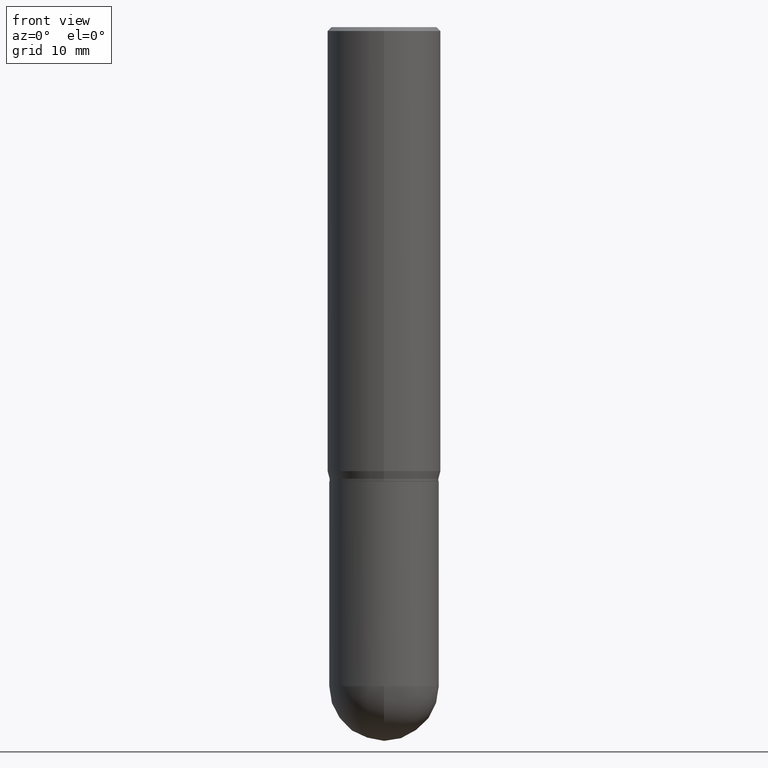
[diagram: clean part render]
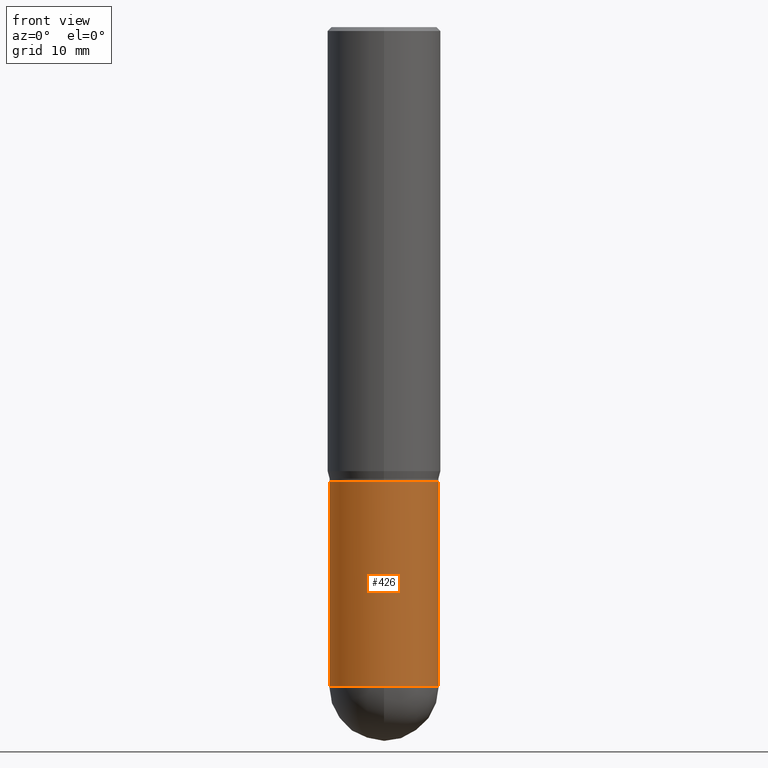
[diagram: same view with one face highlighted and labeled with its STEP entity id]
A machine part, front view. The second image highlights one B-rep face of the part: STEP entity #426.
In plain terms, the highlighted cylindrical surface (partial cylindrical patch) has radius 5.3581 mm, axis along (-0, 0, 1).
Its self-contained STEP definition (entity closure, byte-faithful):
#41 = VECTOR ( 'NONE', #107, 39.37007874015748143 ) ;
#49 = AXIS2_PLACEMENT_3D ( 'NONE', #360, #453, #363 ) ;
#62 = VERTEX_POINT ( 'NONE', #116 ) ;
#68 = CARTESIAN_POINT ( 'NONE',  ( -0.2109500000000000541, 1.498889901085931727E-15, -1.037649357289272662E-29 ) ) ;
#77 = CARTESIAN_POINT ( 'NONE',  ( -0.2109500000000000541, -5.988679117096665555E-15, -2.539050000000000473 ) ) ;
#93 = CARTESIAN_POINT ( 'NONE',  ( -1.498889901085869604E-15, -0.2109500000000089637, -2.539049999999999585 ) ) ;
#102 = EDGE_CURVE ( 'NONE', #111, #388, #345, .T. ) ;
#105 = ORIENTED_EDGE ( 'NONE', *, *, #171, .T. ) ;
#106 = EDGE_LOOP ( 'NONE', ( #184, #105, #201, #471, #439 ) ) ;
#107 = DIRECTION ( 'NONE',  ( -2.445468806185136877E-29, 3.491481338843145188E-15, 1.000000000000000000 ) ) ;
#111 = VERTEX_POINT ( 'NONE', #93 ) ;
#113 = VECTOR ( 'NONE', #228, 39.37007874015748143 ) ;
#116 = CARTESIAN_POINT ( 'NONE',  ( 0.2109499999999999986, -7.583148319833423025E-15, -1.750000000000000000 ) ) ;
#125 = DIRECTION ( 'NONE',  ( -2.445468806185136597E-29, 3.491481338843145583E-15, 1.000000000000000000 ) ) ;
#146 = CARTESIAN_POINT ( 'NONE',  ( 0.2109500000000000541, -1.473055976857918157E-15, 1.028629490854152908E-29 ) ) ;
#164 = CIRCLE ( 'NONE', #49, 0.2109500000000000541 ) ;
#171 = EDGE_CURVE ( 'NONE', #419, #111, #164, .T. ) ;
#178 = LINE ( 'NONE', #146, #41 ) ;
#182 = DIRECTION ( 'NONE',  ( -2.445468806185136597E-29, 3.491481338843145583E-15, 1.000000000000000000 ) ) ;
#184 = ORIENTED_EDGE ( 'NONE', *, *, #354, .F. ) ;
#198 = DIRECTION ( 'NONE',  ( -2.445468806185136597E-29, 3.491481338843145583E-15, 1.000000000000000000 ) ) ;
#201 = ORIENTED_EDGE ( 'NONE', *, *, #102, .T. ) ;
#215 = VERTEX_POINT ( 'NONE', #365 ) ;
#216 = CARTESIAN_POINT ( 'NONE',  ( 6.209167572344372023E-29, -8.865045693389689499E-15, -2.539050000000000473 ) ) ;
#224 = CARTESIAN_POINT ( 'NONE',  ( 4.279570410823988484E-29, -6.110092342975504671E-15, -1.750000000000000000 ) ) ;
#228 = DIRECTION ( 'NONE',  ( -2.445468806185136877E-29, 3.491481338843145188E-15, 1.000000000000000000 ) ) ;
#247 = CIRCLE ( 'NONE', #369, 0.2109499999999999986 ) ;
#250 = EDGE_CURVE ( 'NONE', #215, #62, #247, .T. ) ;
#251 = DIRECTION ( 'NONE',  ( 1.000000000000000000, -6.982962677686265133E-15, 0.000000000000000000 ) ) ;
#260 = LINE ( 'NONE', #68, #113 ) ;
#264 = DIRECTION ( 'NONE',  ( 1.000000000000000000, -6.982962677686266711E-15, 0.000000000000000000 ) ) ;
#302 = EDGE_CURVE ( 'NONE', #388, #62, #178, .T. ) ;
#345 = CIRCLE ( 'NONE', #463, 0.2109500000000000541 ) ;
#346 = CYLINDRICAL_SURFACE ( 'NONE', #405, 0.2109500000000000541 ) ;
#351 = FACE_OUTER_BOUND ( 'NONE', #106, .T. ) ;
#354 = EDGE_CURVE ( 'NONE', #419, #215, #260, .T. ) ;
#360 = CARTESIAN_POINT ( 'NONE',  ( 6.209167572344372023E-29, -8.865045693389689499E-15, -2.539050000000000473 ) ) ;
#363 = DIRECTION ( 'NONE',  ( 1.000000000000000000, -6.982962677686265133E-15, 0.000000000000000000 ) ) ;
#365 = CARTESIAN_POINT ( 'NONE',  ( -0.2109499999999999986, -5.988679117096665555E-15, -1.750000000000000000 ) ) ;
#369 = AXIS2_PLACEMENT_3D ( 'NONE', #224, #182, #264 ) ;
#387 = CARTESIAN_POINT ( 'NONE',  ( 0.000000000000000000, 0.000000000000000000, 0.000000000000000000 ) ) ;
#388 = VERTEX_POINT ( 'NONE', #460 ) ;
#405 = AXIS2_PLACEMENT_3D ( 'NONE', #387, #198, #468 ) ;
#419 = VERTEX_POINT ( 'NONE', #77 ) ;
#426 = ADVANCED_FACE ( 'NONE', ( #351 ), #346, .T. ) ;
#439 = ORIENTED_EDGE ( 'NONE', *, *, #250, .F. ) ;
#453 = DIRECTION ( 'NONE',  ( -2.445468806185136597E-29, 3.491481338843145583E-15, 1.000000000000000000 ) ) ;
#460 = CARTESIAN_POINT ( 'NONE',  ( 0.2109500000000000541, -8.960624995040515044E-15, -2.539050000000000473 ) ) ;
#463 = AXIS2_PLACEMENT_3D ( 'NONE', #216, #125, #251 ) ;
#468 = DIRECTION ( 'NONE',  ( 1.000000000000000000, -6.982962677686265922E-15, 4.876176775795935793E-29 ) ) ;
#471 = ORIENTED_EDGE ( 'NONE', *, *, #302, .T. ) ;